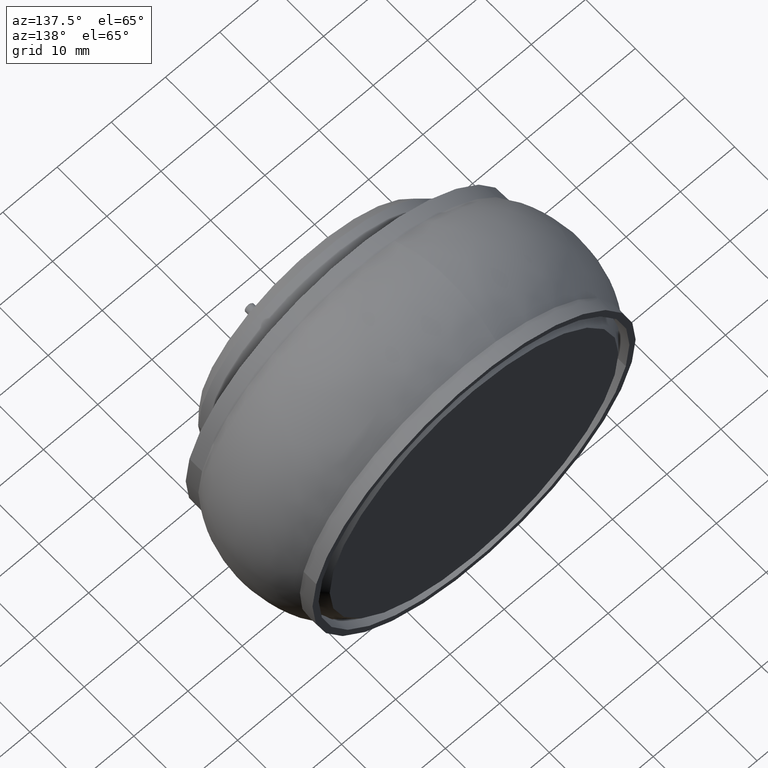
[diagram: clean part render]
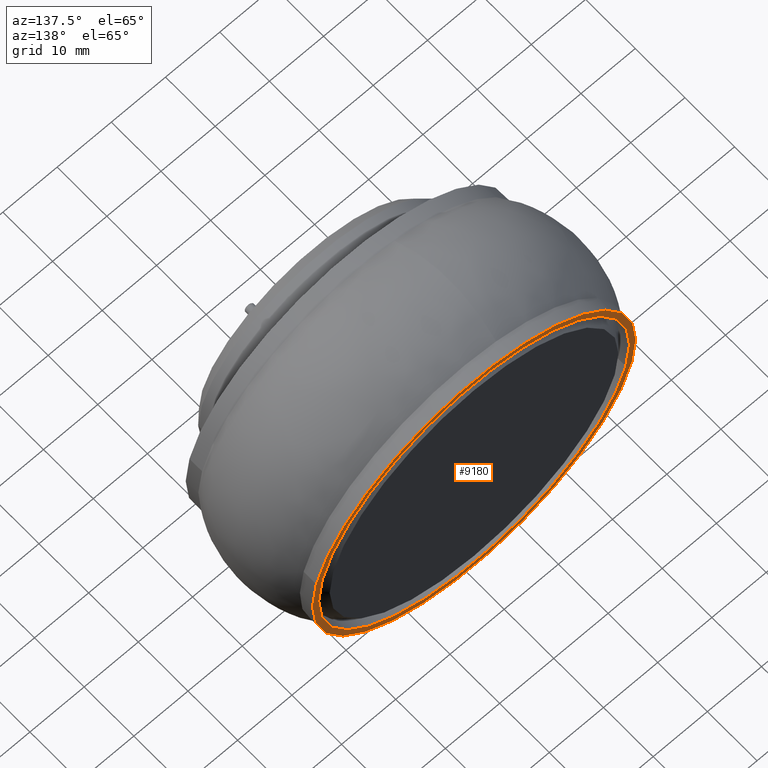
[diagram: same view with one face highlighted and labeled with its STEP entity id]
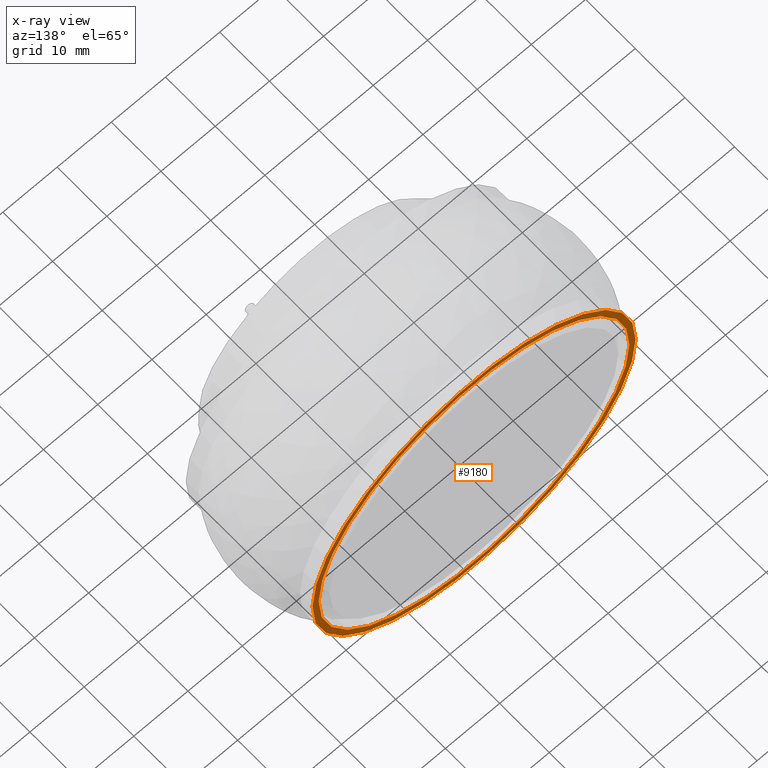
[diagram: x-ray of the same camera — body ghosted, the highlighted face saturated]
A machine part, auxiliary view. The second image highlights one B-rep face of the part: STEP entity #9180.
The next image is the same camera in x-ray: the body ghosted, the highlighted face saturated — about 0% of this face is hidden behind the body in this view.
In plain terms, the highlighted planar face has unit normal (-0, 1, 0).
Its self-contained STEP definition (entity closure, byte-faithful):
#739 = CIRCLE ( 'NONE', #10967, 1.128640772573400000 ) ;
#1373 = EDGE_LOOP ( 'NONE', ( #10886, #13922 ) ) ;
#2075 = DIRECTION ( 'NONE',  ( -1.096332265837262600E-018, 1.000000000000000000, 7.940918782560250200E-019 ) ) ;
#2340 = FACE_BOUND ( 'NONE', #15017, .T. ) ;
#2388 = VERTEX_POINT ( 'NONE', #10521 ) ;
#2483 = CIRCLE ( 'NONE', #11404, 1.173640772573352000 ) ;
#2584 = AXIS2_PLACEMENT_3D ( 'NONE', #14553, #6145, #11907 ) ;
#3073 = VERTEX_POINT ( 'NONE', #15125 ) ;
#3910 = FACE_OUTER_BOUND ( 'NONE', #1373, .T. ) ;
#4169 = ORIENTED_EDGE ( 'NONE', *, *, #5338, .T. ) ;
#5338 = EDGE_CURVE ( 'NONE', #7035, #2388, #10442, .T. ) ;
#6020 = EDGE_CURVE ( 'NONE', #2388, #7035, #739, .T. ) ;
#6145 = DIRECTION ( 'NONE',  ( 1.096332265837262400E-018, -1.000000000000000000, -7.940918782560247300E-019 ) ) ;
#6297 = CARTESIAN_POINT ( 'NONE',  ( -1.969096572257701700E-016, 0.5489973087788044800, -2.456348010631317000E-016 ) ) ;
#6413 = VERTEX_POINT ( 'NONE', #10574 ) ;
#6952 = PLANE ( 'NONE',  #10508 ) ;
#6958 = DIRECTION ( 'NONE',  ( 1.096332265837262400E-018, -1.000000000000000000, -7.940918782560247300E-019 ) ) ;
#7035 = VERTEX_POINT ( 'NONE', #8481 ) ;
#7076 = EDGE_CURVE ( 'NONE', #6413, #3073, #2483, .T. ) ;
#7376 = CARTESIAN_POINT ( 'NONE',  ( -1.969096572257701700E-016, 0.5489973087788044800, -2.456348010631317000E-016 ) ) ;
#7461 = DIRECTION ( 'NONE',  ( 1.096332265837262400E-018, -1.000000000000000000, -7.940918782560247300E-019 ) ) ;
#8481 = CARTESIAN_POINT ( 'NONE',  ( 1.102263225760715400, 0.5489973087788044800, 0.2425814804362917700 ) ) ;
#8940 = DIRECTION ( 'NONE',  ( 0.9766289261794598400, 0.0000000000000000000, 0.2149324092582487200 ) ) ;
#9047 = DIRECTION ( 'NONE',  ( 1.096332265837262400E-018, -1.000000000000000000, -7.940918782560247300E-019 ) ) ;
#9180 = ADVANCED_FACE ( 'NONE', ( #2340, #3910 ), #6952, .T. ) ;
#9453 = ORIENTED_EDGE ( 'NONE', *, *, #6020, .T. ) ;
#9483 = CARTESIAN_POINT ( 'NONE',  ( -0.2522534388529030800, 0.5489973087788044800, 1.146211527438744100 ) ) ;
#10442 = CIRCLE ( 'NONE', #2584, 1.128640772573400000 ) ;
#10508 = AXIS2_PLACEMENT_3D ( 'NONE', #9483, #2075, #14520 ) ;
#10521 = CARTESIAN_POINT ( 'NONE',  ( -1.102263225760715900, 0.5489973087788044800, -0.2425814804362922100 ) ) ;
#10574 = CARTESIAN_POINT ( 'NONE',  ( -1.146211527438744800, 0.5489973087788044800, -0.2522534388529030800 ) ) ;
#10886 = ORIENTED_EDGE ( 'NONE', *, *, #10900, .F. ) ;
#10900 = EDGE_CURVE ( 'NONE', #3073, #6413, #15717, .T. ) ;
#10967 = AXIS2_PLACEMENT_3D ( 'NONE', #6297, #7461, #12436 ) ;
#11404 = AXIS2_PLACEMENT_3D ( 'NONE', #7376, #9047, #8940 ) ;
#11907 = DIRECTION ( 'NONE',  ( 0.9766289261794597300, 0.0000000000000000000, 0.2149324092582486900 ) ) ;
#12436 = DIRECTION ( 'NONE',  ( 0.9766289261794597300, 0.0000000000000000000, 0.2149324092582486900 ) ) ;
#12939 = DIRECTION ( 'NONE',  ( 0.9766289261794598400, 0.0000000000000000000, 0.2149324092582487200 ) ) ;
#13108 = CARTESIAN_POINT ( 'NONE',  ( -1.969096572257701700E-016, 0.5489973087788044800, -2.456348010631317000E-016 ) ) ;
#13922 = ORIENTED_EDGE ( 'NONE', *, *, #7076, .F. ) ;
#14170 = AXIS2_PLACEMENT_3D ( 'NONE', #13108, #6958, #12939 ) ;
#14520 = DIRECTION ( 'NONE',  ( -0.9766289261794598400, -9.000337229545643800E-019, -0.2149324092582487200 ) ) ;
#14553 = CARTESIAN_POINT ( 'NONE',  ( -1.969096572257701700E-016, 0.5489973087788044800, -2.456348010631317000E-016 ) ) ;
#15017 = EDGE_LOOP ( 'NONE', ( #4169, #9453 ) ) ;
#15125 = CARTESIAN_POINT ( 'NONE',  ( 1.146211527438744300, 0.5489973087788044800, 0.2522534388529026900 ) ) ;
#15717 = CIRCLE ( 'NONE', #14170, 1.173640772573352000 ) ;